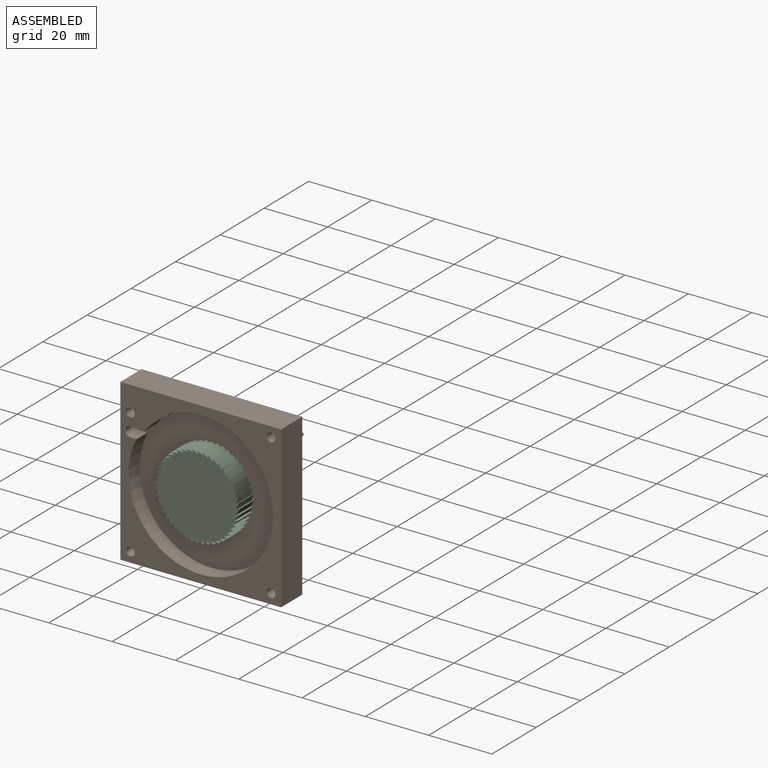
[diagram: assembled view]
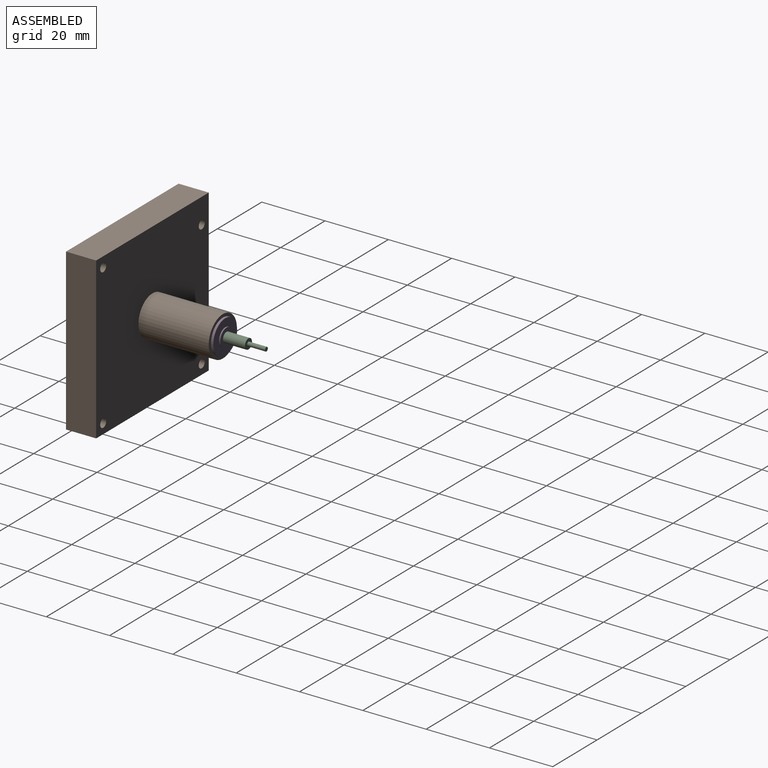
[diagram: assembled view, second angle]
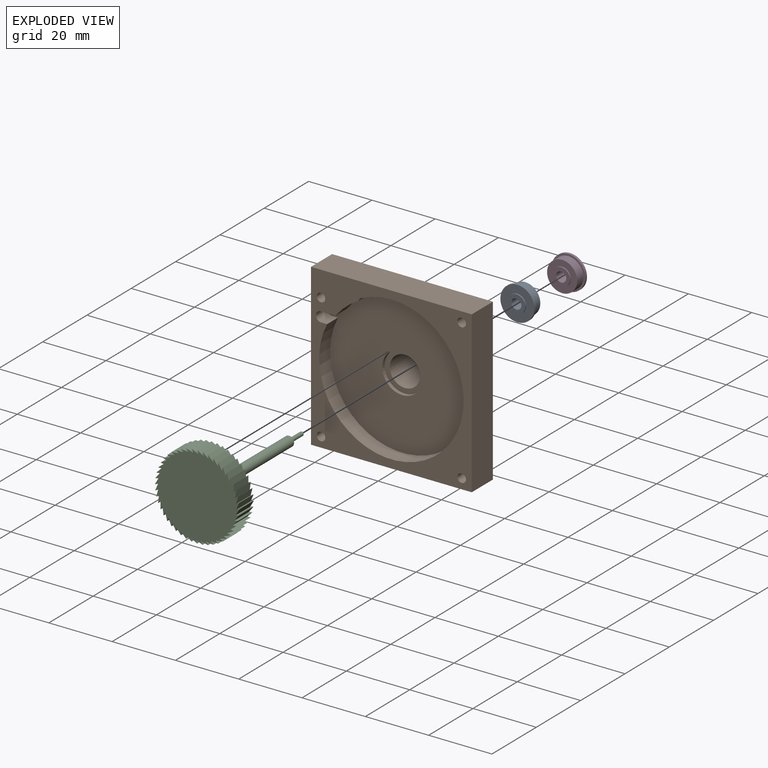
[diagram: exploded view]
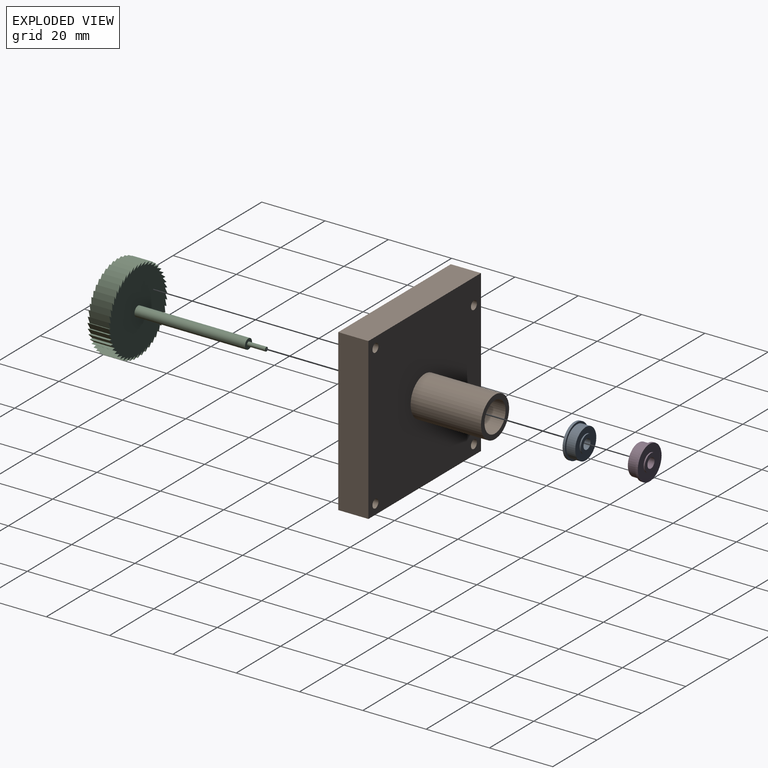
[diagram: exploded view, second angle]
ASSEMBLY  parts=4 mates=5
PART A: 10 faces, bbox 4.4x10.7x10.7 mm
  f0: cylinder r=1.59mm len=4.37mm, axis (1,0,0), area 43.6mm2, adj f1,f9
  f1: plane 5.59x5.59mm, normal (1,0,0), area 16.6mm2, adj f0,f2
  f2: cylinder r=2.79mm len=5.59mm, axis (1,0,0), area 7mm2, adj f1,f3
  f3: plane 10.72x10.72mm, normal (1,0,0), area 65.7mm2, adj f2,f4
  f4: cylinder r=5.36mm len=10.72mm, axis (1,0,0), area 25.7mm2, adj f3,f5
  f5: plane 10.72x10.72mm, normal (-1,0,0), area 19mm2, adj f4,f6
  f6: cylinder r=4.76mm len=9.53mm, axis (1,0,0), area 84.1mm2, adj f5,f7
  f7: plane 9.53x9.53mm, normal (-1,0,0), area 46.7mm2, adj f6,f8
  f8: cylinder r=2.79mm len=5.59mm, axis (1,0,0), area 7mm2, adj f7,f9
  f9: plane 5.59x5.59mm, normal (-1,0,0), area 16.6mm2, adj f0,f8
PART B: 25 faces, bbox 50.8x31.8x50.8 mm
  f0: cylinder r=4.76mm len=25.65mm, axis (0,-1,0), area 767.7mm2, adj f6,f23
  f1: plane 50.8x50.8mm, normal (0,-1,0), area 916mm2, adj f2,f3,f4,f5,f8,f11,f12,f13
  f2: plane 50.8x9.53mm, normal (0,0,1), area 483.9mm2, adj f1,f3,f5,f9
  f3: plane 50.8x9.53mm, normal (-1,0,0), area 478.1mm2, adj f1,f2,f4,f9,f15
  f4: plane 50.8x9.53mm, normal (0,0,-1), area 483.9mm2, adj f1,f3,f5,f9
  f5: plane 50.8x9.53mm, normal (1,0,0), area 483.9mm2, adj f1,f2,f4,f9
  f6: plane 12.7x12.7mm, normal (0,1,0), area 55.4mm2, adj f0,f10
  f7: plane 46.62x45.62mm, normal (0,-1,0), area 1515mm2, adj f8,f18,f19,f20,f21,f22,f24
  f8: cylinder r=22.25mm len=7.29mm, axis (0,-1,0), area 47.6mm2, adj f1,f7,f18,f22
  f9: plane 50.8x50.8mm, normal (0,1,0), area 2431mm2, adj f2,f3,f4,f5,f10,f11,f12,f13
  f10: cylinder r=6.35mm len=22.23mm, axis (0,1,0), area 886.7mm2, adj f6,f9
  f11: cylinder r=1.35mm len=9.53mm, axis (0,-1,0), area 80.9mm2, adj f1,f9
  f12: cylinder r=1.35mm len=9.53mm, axis (0,-1,0), area 80.9mm2, adj f1,f9
  f13: cylinder r=1.35mm len=9.53mm, axis (0,-1,0), area 80.9mm2, adj f1,f9
  f14: cylinder r=1.35mm len=9.53mm, axis (0,-1,0), area 80.9mm2, adj f1,f9
  f15: cylinder r=1.35mm len=9.53mm, axis (-1,0,0), area 80.9mm2, adj f3,f17
  f16: cylinder r=0.36mm len=9.53mm, axis (-1,0,0), area 18.5mm2, adj f17,f21
  f17: cone r=0.36mm half-angle=45deg, axis (-1,0,0), area 7.6mm2, adj f15,f16
  f18: plane 4.95x4.58mm, normal (0,0,-1), area 22.7mm2, adj f1,f7,f8,f19
  f19: cylinder r=1.59mm len=4.95mm, axis (0,-1,0), area 24.7mm2, adj f1,f7,f18,f20
  f20: plane 4.95x1.91mm, normal (0,0,1), area 9.5mm2, adj f1,f7,f19,f21
  f21: cylinder r=22.81mm len=45.62mm, axis (0,-1,0), area 632.7mm2, adj f1,f7,f16,f20,f22
  f22: cylinder r=1.59mm len=4.95mm, axis (0,-1,0), area 7mm2, adj f1,f7,f8,f21
  f23: plane 12.7x12.7mm, normal (0,-1,0), area 55.4mm2, adj f0,f24
  f24: cylinder r=6.35mm len=12.7mm, axis (0,-1,0), area 45.6mm2, adj f7,f23
PART C: 102 faces, bbox 26.7x47.2x26.7 mm
  f0: plane 6.6x1.06mm, normal (-0.97,0,0.26), area 7.2mm2, adj f1,f95,f96,f97
  f1: plane 6.6x1.86mm, normal (0.61,0,-0.79), area 15.5mm2, adj f0,f2,f96,f97
  f2: plane 6.6x1.08mm, normal (-0.99,0,0.13), area 7.2mm2, adj f1,f3,f96,f97
  f3: plane 6.6x1.66mm, normal (0.71,0,-0.71), area 15.5mm2, adj f2,f4,f96,f97
  f4: plane 6.6x1.09mm, normal (-1,0,0), area 7.2mm2, adj f3,f5,f96,f97
  f5: plane 6.6x1.86mm, normal (0.79,0,-0.61), area 15.5mm2, adj f4,f6,f96,f97
  f6: plane 6.6x1.08mm, normal (-0.99,0,-0.13), area 7.2mm2, adj f5,f7,f96,f97
  f7: plane 6.6x2.03mm, normal (0.87,0,-0.5), area 15.5mm2, adj f6,f8,f96,f97
  f8: plane 6.6x1.06mm, normal (-0.97,0,-0.26), area 7.2mm2, adj f7,f9,f96,f97
  f9: plane 6.6x2.16mm, normal (0.92,0,-0.38), area 15.5mm2, adj f8,f10,f96,f97
  f10: plane 6.6x1.01mm, normal (-0.92,0,-0.38), area 7.2mm2, adj f9,f11,f96,f97
  f11: plane 6.6x2.26mm, normal (0.97,0,-0.26), area 15.5mm2, adj f10,f12,f96,f97
  f12: plane 6.6x0.95mm, normal (-0.87,0,-0.5), area 7.2mm2, adj f11,f13,f96,f97
  f13: plane 6.6x2.32mm, normal (0.99,0,-0.13), area 15.5mm2, adj f12,f14,f96,f97
  f14: plane 6.6x0.87mm, normal (-0.79,0,-0.61), area 7.2mm2, adj f13,f15,f96,f97
  f15: plane 6.6x2.34mm, normal (1,0,0), area 15.5mm2, adj f14,f16,f96,f97
  f16: plane 6.6x0.77mm, normal (-0.71,0,-0.71), area 7.2mm2, adj f15,f17,f96,f97
  f17: plane 6.6x2.32mm, normal (0.99,0,0.13), area 15.5mm2, adj f16,f18,f96,f97
  f18: plane 6.6x0.87mm, normal (-0.61,0,-0.79), area 7.2mm2, adj f17,f19,f96,f97
  f19: plane 6.6x2.26mm, normal (0.97,0,0.26), area 15.5mm2, adj f18,f20,f96,f97
  f20: plane 6.6x0.95mm, normal (-0.5,0,-0.87), area 7.2mm2, adj f19,f21,f96,f97
  f21: plane 6.6x2.16mm, normal (0.92,0,0.38), area 15.5mm2, adj f20,f22,f96,f97
  f22: plane 6.6x1.01mm, normal (-0.38,0,-0.92), area 7.2mm2, adj f21,f23,f96,f97
  f23: plane 6.6x2.03mm, normal (0.87,0,0.5), area 15.5mm2, adj f22,f24,f96,f97
  f24: plane 6.6x1.06mm, normal (-0.26,0,-0.97), area 7.2mm2, adj f23,f25,f96,f97
  f25: plane 6.6x1.86mm, normal (0.79,0,0.61), area 15.5mm2, adj f24,f26,f96,f97
  f26: plane 6.6x1.08mm, normal (-0.13,0,-0.99), area 7.2mm2, adj f25,f27,f96,f97
  f27: plane 6.6x1.66mm, normal (0.71,0,0.71), area 15.5mm2, adj f26,f28,f96,f97
  f28: plane 6.6x1.09mm, normal (0,0,-1), area 7.2mm2, adj f27,f29,f96,f97
  f29: plane 6.6x1.86mm, normal (0.61,0,0.79), area 15.5mm2, adj f28,f30,f96,f97
  f30: plane 6.6x1.08mm, normal (0.13,0,-0.99), area 7.2mm2, adj f29,f31,f96,f97
  f31: plane 6.6x2.03mm, normal (0.5,0,0.87), area 15.5mm2, adj f30,f32,f96,f97
  f32: plane 6.6x1.06mm, normal (0.26,0,-0.97), area 7.2mm2, adj f31,f33,f96,f97
  f33: plane 6.6x2.16mm, normal (0.38,0,0.92), area 15.5mm2, adj f32,f34,f96,f97
  f34: plane 6.6x1.01mm, normal (0.38,0,-0.92), area 7.2mm2, adj f33,f35,f96,f97
  f35: plane 6.6x2.26mm, normal (0.26,0,0.97), area 15.5mm2, adj f34,f36,f96,f97
  f36: plane 6.6x0.95mm, normal (0.5,0,-0.87), area 7.2mm2, adj f35,f37,f96,f97
  f37: plane 6.6x2.32mm, normal (0.13,0,0.99), area 15.5mm2, adj f36,f38,f96,f97
  f38: plane 6.6x0.87mm, normal (0.61,0,-0.79), area 7.2mm2, adj f37,f39,f96,f97
  f39: plane 6.6x2.34mm, normal (0,0,1), area 15.5mm2, adj f38,f40,f96,f97
  f40: plane 6.6x0.77mm, normal (0.71,0,-0.71), area 7.2mm2, adj f39,f41,f96,f97
  f41: plane 6.6x2.32mm, normal (-0.13,0,0.99), area 15.5mm2, adj f40,f42,f96,f97
  f42: plane 6.6x0.87mm, normal (0.79,0,-0.61), area 7.2mm2, adj f41,f43,f96,f97
  f43: plane 6.6x2.26mm, normal (-0.26,0,0.97), area 15.5mm2, adj f42,f44,f96,f97
  f44: plane 6.6x0.95mm, normal (0.87,0,-0.5), area 7.2mm2, adj f43,f45,f96,f97
  f45: plane 6.6x2.16mm, normal (-0.38,0,0.92), area 15.5mm2, adj f44,f46,f96,f97
  f46: plane 6.6x1.01mm, normal (0.92,0,-0.38), area 7.2mm2, adj f45,f47,f96,f97
  f47: plane 6.6x2.03mm, normal (-0.5,0,0.87), area 15.5mm2, adj f46,f48,f96,f97
  f48: plane 6.6x1.06mm, normal (0.97,0,-0.26), area 7.2mm2, adj f47,f49,f96,f97
  f49: plane 6.6x1.86mm, normal (-0.61,0,0.79), area 15.5mm2, adj f48,f50,f96,f97
  f50: plane 6.6x1.08mm, normal (0.99,0,-0.13), area 7.2mm2, adj f49,f51,f96,f97
  f51: plane 6.6x1.66mm, normal (-0.71,0,0.71), area 15.5mm2, adj f50,f52,f96,f97
  f52: plane 6.6x1.09mm, normal (1,0,0), area 7.2mm2, adj f51,f53,f96,f97
  f53: plane 6.6x1.86mm, normal (-0.79,0,0.61), area 15.5mm2, adj f52,f54,f96,f97
  f54: plane 6.6x1.08mm, normal (0.99,0,0.13), area 7.2mm2, adj f53,f55,f96,f97
  f55: plane 6.6x2.03mm, normal (-0.87,0,0.5), area 15.5mm2, adj f54,f56,f96,f97
  f56: plane 6.6x1.06mm, normal (0.97,0,0.26), area 7.2mm2, adj f55,f57,f96,f97
  f57: plane 6.6x2.16mm, normal (-0.92,0,0.38), area 15.5mm2, adj f56,f58,f96,f97
  f58: plane 6.6x1.01mm, normal (0.92,0,0.38), area 7.2mm2, adj f57,f59,f96,f97
  f59: plane 6.6x2.26mm, normal (-0.97,0,0.26), area 15.5mm2, adj f58,f60,f96,f97
  f60: plane 6.6x0.95mm, normal (0.87,0,0.5), area 7.2mm2, adj f59,f61,f96,f97
  f61: plane 6.6x2.32mm, normal (-0.99,0,0.13), area 15.5mm2, adj f60,f62,f96,f97
  f62: plane 6.6x0.87mm, normal (0.79,0,0.61), area 7.2mm2, adj f61,f63,f96,f97
  f63: plane 6.6x2.34mm, normal (-1,0,0), area 15.5mm2, adj f62,f64,f96,f97
  f64: plane 6.6x0.77mm, normal (0.71,0,0.71), area 7.2mm2, adj f63,f65,f96,f97
  f65: plane 6.6x2.32mm, normal (-0.99,0,-0.13), area 15.5mm2, adj f64,f66,f96,f97
  f66: plane 6.6x0.87mm, normal (0.61,0,0.79), area 7.2mm2, adj f65,f67,f96,f97
  f67: plane 6.6x2.26mm, normal (-0.97,0,-0.26), area 15.5mm2, adj f66,f68,f96,f97
  f68: plane 6.6x0.95mm, normal (0.5,0,0.87), area 7.2mm2, adj f67,f69,f96,f97
  f69: plane 6.6x2.16mm, normal (-0.92,0,-0.38), area 15.5mm2, adj f68,f70,f96,f97
  f70: plane 6.6x1.01mm, normal (0.38,0,0.92), area 7.2mm2, adj f69,f71,f96,f97
  f71: plane 6.6x2.03mm, normal (-0.87,0,-0.5), area 15.5mm2, adj f70,f72,f96,f97
  f72: plane 6.6x1.06mm, normal (0.26,0,0.97), area 7.2mm2, adj f71,f73,f96,f97
  f73: plane 6.6x1.86mm, normal (-0.79,0,-0.61), area 15.5mm2, adj f72,f74,f96,f97
  f74: plane 6.6x1.08mm, normal (0.13,0,0.99), area 7.2mm2, adj f73,f75,f96,f97
  f75: plane 6.6x1.66mm, normal (-0.71,0,-0.71), area 15.5mm2, adj f74,f76,f96,f97
  f76: plane 6.6x1.09mm, normal (0,0,1), area 7.2mm2, adj f75,f77,f96,f97
  f77: plane 6.6x1.86mm, normal (-0.61,0,-0.79), area 15.5mm2, adj f76,f78,f96,f97
  f78: plane 6.6x1.08mm, normal (-0.13,0,0.99), area 7.2mm2, adj f77,f79,f96,f97
  f79: plane 6.6x2.03mm, normal (-0.5,0,-0.87), area 15.5mm2, adj f78,f80,f96,f97
  f80: plane 6.6x1.06mm, normal (-0.26,0,0.97), area 7.2mm2, adj f79,f81,f96,f97
  f81: plane 6.6x2.16mm, normal (-0.38,0,-0.92), area 15.5mm2, adj f80,f82,f96,f97
  f82: plane 6.6x1.01mm, normal (-0.38,0,0.92), area 7.2mm2, adj f81,f83,f96,f97
  f83: plane 6.6x2.26mm, normal (-0.26,0,-0.97), area 15.5mm2, adj f82,f84,f96,f97
  f84: plane 6.6x0.95mm, normal (-0.5,0,0.87), area 7.2mm2, adj f83,f85,f96,f97
  f85: plane 6.6x2.32mm, normal (-0.13,0,-0.99), area 15.5mm2, adj f84,f86,f96,f97
  f86: plane 6.6x0.87mm, normal (-0.61,0,0.79), area 7.2mm2, adj f85,f87,f96,f97
  f87: plane 6.6x2.34mm, normal (0,0,-1), area 15.5mm2, adj f86,f88,f96,f97
  f88: plane 6.6x0.77mm, normal (-0.71,0,0.71), area 7.2mm2, adj f87,f89,f96,f97
  f89: plane 6.6x2.32mm, normal (0.13,0,-0.99), area 15.5mm2, adj f88,f90,f96,f97
  f90: plane 6.6x0.87mm, normal (-0.79,0,0.61), area 7.2mm2, adj f89,f91,f96,f97
  f91: plane 6.6x2.26mm, normal (0.26,0,-0.97), area 15.5mm2, adj f90,f92,f96,f97
  f92: plane 6.6x0.95mm, normal (-0.87,0,0.5), area 7.2mm2, adj f91,f93,f96,f97
  f93: plane 6.6x2.16mm, normal (0.38,0,-0.92), area 15.5mm2, adj f92,f94,f96,f97
  f94: plane 6.6x1.01mm, normal (-0.92,0,0.38), area 7.2mm2, adj f93,f95,f96,f97
  f95: plane 6.6x2.03mm, normal (0.5,0,-0.87), area 15.5mm2, adj f0,f94,f96,f97
  f96: plane 26.72x26.72mm, normal (0,-1,0), area 507.8mm2, adj f0,f1,f2,f3,f4,f5,f6,f7
  f97: plane 26.72x26.72mm, normal (0,1,0), area 515.8mm2, adj f0,f1,f2,f3,f4,f5,f6,f7
  f98: cylinder r=1.59mm len=34.93mm, axis (0,1,0), area 348.4mm2, adj f96,f99
  f99: plane 3.18x3.18mm, normal (0,-1,0), area 6.7mm2, adj f98,f100
  f100: cylinder r=0.64mm len=5.66mm, axis (0,1,0), area 22.6mm2, adj f99,f101
  f101: plane 1.27x1.27mm, normal (0,-1,0), area 1.3mm2, adj f100
PART D: same geometry as A
PLACE A rot(axis=(0,0,-1),90deg) t=(0,9.3,0)mm
PLACE B rot(axis=(-0.24,0.55,0.8),0deg) t=(0,0,0)mm
PLACE C rot(axis=(-0.71,0,0.71),180deg) t=(0,-1.67,0)mm
PLACE D rot(axis=(-0.71,-0.71,0),180deg) t=(0,28.54,0)mm
MATE fastened B.f0 <-> D.f0  axis (0,1,0) through (0,31.75,0)mm
MATE ball B.f0 <-> D.f0  axis (0,1,0) through (0,31.75,0)mm
MATE ball B.f0 <-> A.f0  axis (0,-1,0) through (0,6.1,0)mm
MATE fastened B.f0 <-> A.f0  axis (0,-1,0) through (0,6.1,0)mm
MATE fastened C.f98 <-> A.f0  axis (0,1,0) through (0,4.94,0)mm
